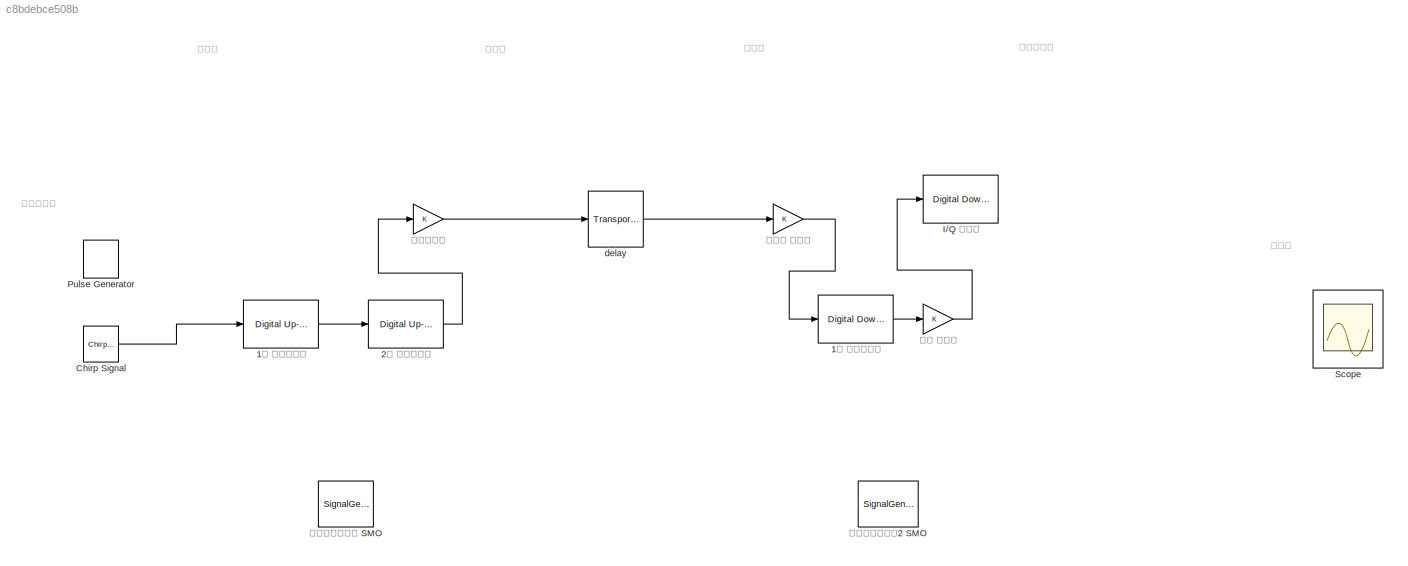
MODEL slx_c8bdebce508b
KIND model
CONFIG AbsTol = auto
CONFIG EnableMultiTasking = off
CONFIG FixedStep = auto
CONFIG MaxStep = auto
CONFIG MinStep = auto
CONFIG RelTol = 1e-3
CONFIG SampleTimeConstraint = Unconstrained
CONFIG Solver = VariableStepAuto
CONFIG SolverName = VariableStepAuto
CONFIG StartTime = 0.0
CONFIG StopTime = 10.0
BLOCK [Reference] 1차 상향변조기  REF=dspsigops/Digital
Up-Converter
  Ports = [1, 1]
  SourceBlock = dspsigops/Digital\nUp-Converter
  SourceProductBaseCode = DS
  SourceProductName = DSP System Toolbox
  SourceType = dsp.DigitalUpConverter
BLOCK [Reference] 1차 하향복조기  REF=dspsigops/Digital
Down-Converter
  Ports = [1, 1]
  SourceBlock = dspsigops/Digital\nDown-Converter
  SourceProductBaseCode = DS
  SourceProductName = DSP System Toolbox
  SourceType = dsp.DigitalDownConverter
BLOCK [Reference] 2차 상향변조기  REF=dspsigops/Digital
Up-Converter
  Ports = [1, 1]
  SourceBlock = dspsigops/Digital\nUp-Converter
  SourceProductBaseCode = DS
  SourceProductName = DSP System Toolbox
  SourceType = dsp.DigitalUpConverter
BLOCK [Reference] Chirp Signal   REF=simulink/Sources/Chirp Signal
  Ports = [0, 1]
  SourceBlock = simulink/Sources/Chirp Signal
  SourceProductBaseCode = SL
  SourceProductName = Simulink
  SourceType = chirp
BLOCK [Reference] I//Q 복조기  REF=dspsigops/Digital
Down-Converter
  Ports = [1, 1]
  SourceBlock = dspsigops/Digital\nDown-Converter
  SourceProductBaseCode = DS
  SourceProductName = DSP System Toolbox
  SourceType = dsp.DigitalDownConverter
BLOCK [DiscretePulseGenerator] Pulse Generator 
  Period = 10
  Ports = [0, 1]
  PulseType = Time based
  PulseWidth = 5
BLOCK [Scope] Scope 
  Floating = off
  NumInputPorts = 2
  Ports = [2]
  ScopeSpecificationString = Simulink.scopes.TimeScopeBlockCfg('CurrentConfiguration', extmgr.ConfigurationSet(extmgr.Configuration('Core','General UI',true),extmgr.Configuration('Core','Source UI',true),extmgr.Configuration('Sources','WiredSimulink',true),extmgr.Configuration('Visuals','Time Domain',true),extmgr.Configuration('Tools','Plot Navigation',true),extmgr.Configuration('Tools','Measurements',true)),'Version','2019a'...<+1ch>
BLOCK [TransportDelay] delay
  Ports = [1, 1]
BLOCK [SignalGenerator] 기준신호발생기 SMO
  Ports = [0, 1]
  Units = rad/sec
BLOCK [SignalGenerator] 기준신호발생기2 SMO
  Ports = [0, 1]
  Units = rad/sec
BLOCK [Gain] 저잡음 증폭기
  OutDataTypeStr = Inherit: Inherit via internal rule
  ParamDataTypeStr = Inherit: Inherit via internal rule
  SaturateOnIntegerOverflow = off
BLOCK [Gain] 전력증폭기
  OutDataTypeStr = Inherit: Inherit via internal rule
  ParamDataTypeStr = Inherit: Inherit via internal rule
  SaturateOnIntegerOverflow = off
BLOCK [Gain] 중간 증폭기
  OutDataTypeStr = Inherit: Inherit via internal rule
  ParamDataTypeStr = Inherit: Inherit via internal rule
  SaturateOnIntegerOverflow = off
ANNOTATION (root): 송신기
ANNOTATION (root): 수신기
ANNOTATION (root): 신호발생기
ANNOTATION (root): 신호처리기
ANNOTATION (root): 안테나
ANNOTATION (root): 전시기
LINE 1차 상향변조기:1 -> 2차 상향변조기:1
LINE 1차 하향복조기:1 -> 중간 증폭기:1
LINE 2차 상향변조기:1 -> 전력증폭기:1
LINE Chirp Signal :1 -> 1차 상향변조기:1
LINE delay:1 -> 저잡음 증폭기:1
LINE 저잡음 증폭기:1 -> 1차 하향복조기:1
LINE 전력증폭기:1 -> delay:1
LINE 중간 증폭기:1 -> I//Q 복조기:1
